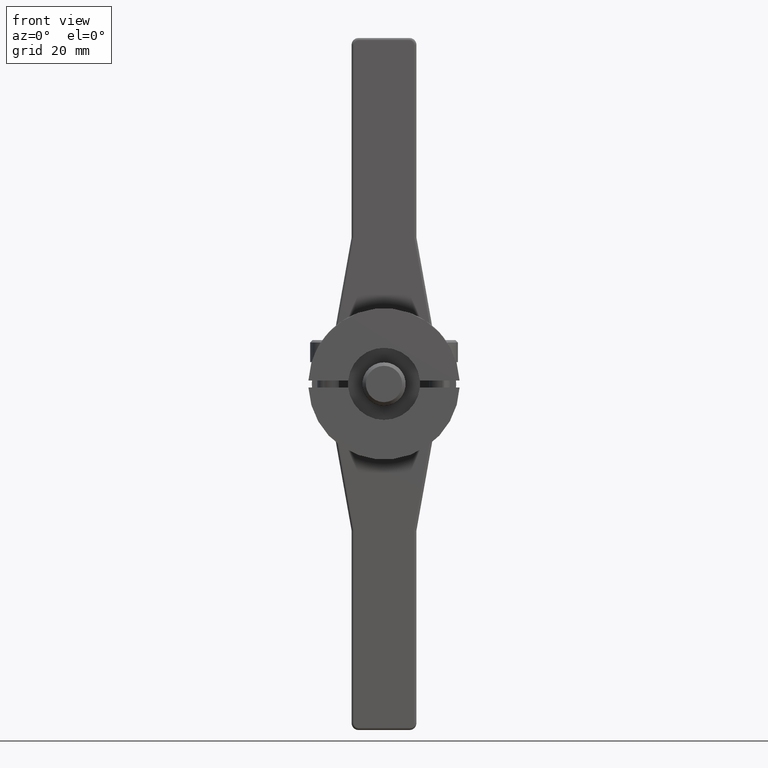
[diagram: clean part render]
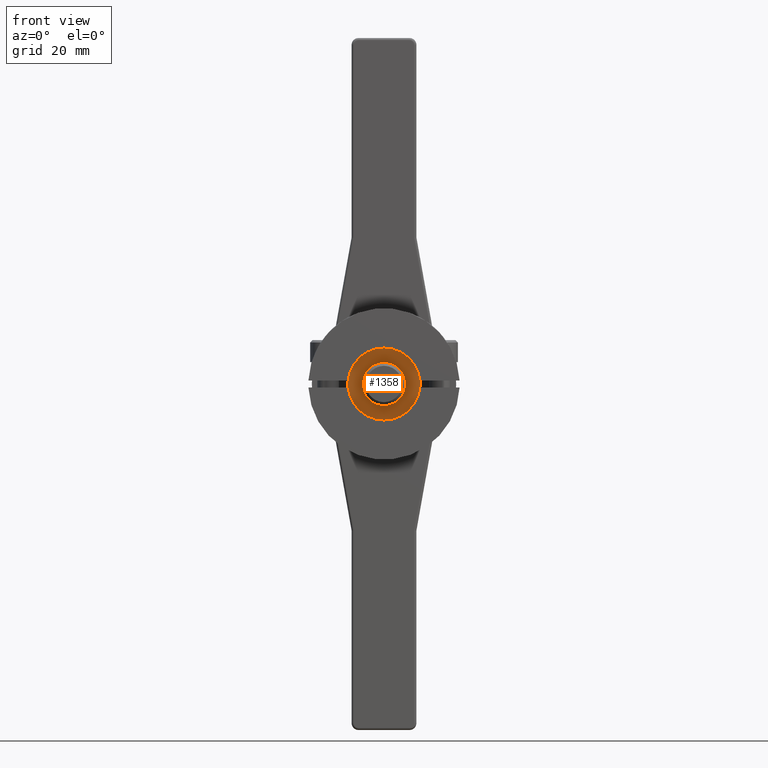
[diagram: same view with one face highlighted and labeled with its STEP entity id]
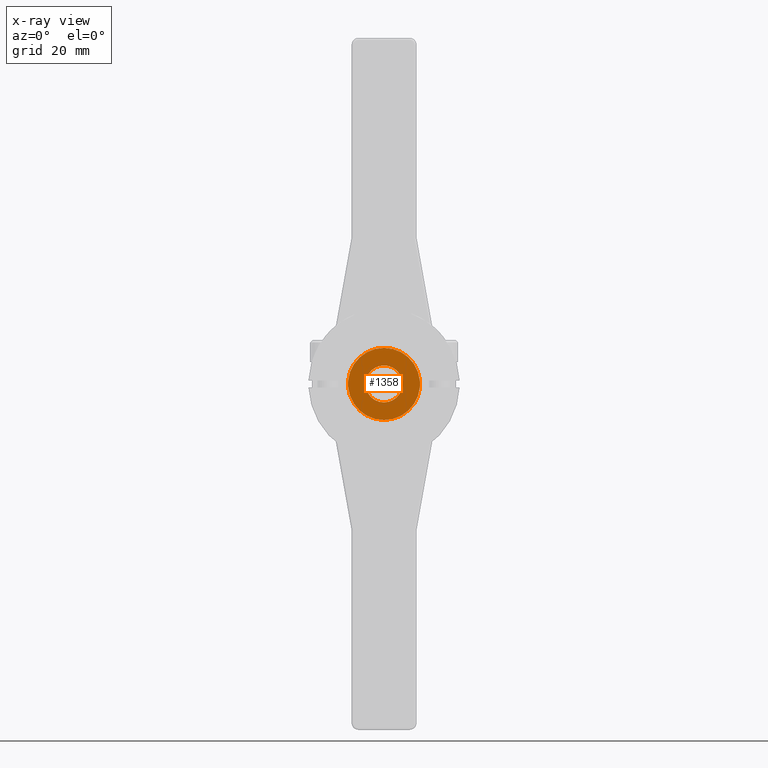
[diagram: x-ray of the same camera — body ghosted, the highlighted face saturated]
A machine part, front view. The second image highlights one B-rep face of the part: STEP entity #1358.
The next image is the same camera in x-ray: the body ghosted, the highlighted face saturated — about 0% of this face is hidden behind the body in this view.
In plain terms, the highlighted planar face has unit normal (0, -1, 0).
Its self-contained STEP definition (entity closure, byte-faithful):
#162=CARTESIAN_POINT('',(0.E0,0.E0,0.E0));
#163=DIRECTION('',(0.E0,-1.E0,0.E0));
#164=DIRECTION('',(0.E0,0.E0,-1.E0));
#165=AXIS2_PLACEMENT_3D('',#162,#163,#164);
#167=CARTESIAN_POINT('',(0.E0,0.E0,0.E0));
#168=DIRECTION('',(0.E0,-1.E0,0.E0));
#169=DIRECTION('',(0.E0,0.E0,1.E0));
#170=AXIS2_PLACEMENT_3D('',#167,#168,#169);
#172=CARTESIAN_POINT('',(0.E0,0.E0,0.E0));
#173=DIRECTION('',(0.E0,1.E0,0.E0));
#174=DIRECTION('',(-9.953813339620E-1,0.E0,9.6E-2));
#175=AXIS2_PLACEMENT_3D('',#172,#173,#174);
#177=CARTESIAN_POINT('',(0.E0,0.E0,0.E0));
#178=DIRECTION('',(0.E0,1.E0,0.E0));
#179=DIRECTION('',(9.953813339620E-1,0.E0,-9.6E-2));
#180=AXIS2_PLACEMENT_3D('',#177,#178,#179);
#191=CARTESIAN_POINT('',(0.E0,0.E0,0.E0));
#192=DIRECTION('',(0.E0,1.E0,0.E0));
#193=DIRECTION('',(-9.953813339620E-1,0.E0,-9.6E-2));
#194=AXIS2_PLACEMENT_3D('',#191,#192,#193);
#201=CARTESIAN_POINT('',(0.E0,0.E0,0.E0));
#202=DIRECTION('',(0.E0,-1.E0,0.E0));
#203=DIRECTION('',(9.953813339620E-1,0.E0,-9.6E-2));
#204=AXIS2_PLACEMENT_3D('',#201,#202,#203);
#1042=CARTESIAN_POINT('',(0.E0,0.E0,-1.6E-1));
#1043=CARTESIAN_POINT('',(0.E0,0.E0,1.6E-1));
#1044=VERTEX_POINT('',#1042);
#1045=VERTEX_POINT('',#1043);
#1114=CARTESIAN_POINT('',(3.110566668631E-1,0.E0,-3.E-2));
#1115=CARTESIAN_POINT('',(-3.110566668631E-1,0.E0,-3.E-2));
#1116=VERTEX_POINT('',#1114);
#1117=VERTEX_POINT('',#1115);
#1118=CARTESIAN_POINT('',(-3.110566668631E-1,0.E0,3.E-2));
#1119=CARTESIAN_POINT('',(3.110566668631E-1,0.E0,3.E-2));
#1120=VERTEX_POINT('',#1118);
#1121=VERTEX_POINT('',#1119);
#1338=CARTESIAN_POINT('',(0.E0,0.E0,0.E0));
#1339=DIRECTION('',(0.E0,-1.E0,0.E0));
#1340=DIRECTION('',(0.E0,0.E0,1.E0));
#1341=AXIS2_PLACEMENT_3D('',#1338,#1339,#1340);
#1342=PLANE('',#1341);
#1344=ORIENTED_EDGE('',*,*,#1343,.T.);
#1346=ORIENTED_EDGE('',*,*,#1345,.T.);
#1348=ORIENTED_EDGE('',*,*,#1347,.F.);
#1350=ORIENTED_EDGE('',*,*,#1349,.T.);
#1351=EDGE_LOOP('',(#1344,#1346,#1348,#1350));
#1352=FACE_OUTER_BOUND('',#1351,.F.);
#1353=ORIENTED_EDGE('',*,*,#1328,.T.);
#1355=ORIENTED_EDGE('',*,*,#1354,.T.);
#1356=EDGE_LOOP('',(#1353,#1355));
#1357=FACE_BOUND('',#1356,.F.);
#1358=ADVANCED_FACE('',(#1352,#1357),#1342,.T.);
#166=CIRCLE('',#165,1.6E-1);
#171=CIRCLE('',#170,1.6E-1);
#176=CIRCLE('',#175,3.125E-1);
#181=CIRCLE('',#180,3.125E-1);
#195=CIRCLE('',#194,3.125E-1);
#205=CIRCLE('',#204,3.125E-1);
#1328=EDGE_CURVE('',#1044,#1045,#166,.T.);
#1343=EDGE_CURVE('',#1117,#1120,#195,.T.);
#1345=EDGE_CURVE('',#1120,#1121,#176,.T.);
#1347=EDGE_CURVE('',#1116,#1121,#205,.T.);
#1349=EDGE_CURVE('',#1116,#1117,#181,.T.);
#1354=EDGE_CURVE('',#1045,#1044,#171,.T.);